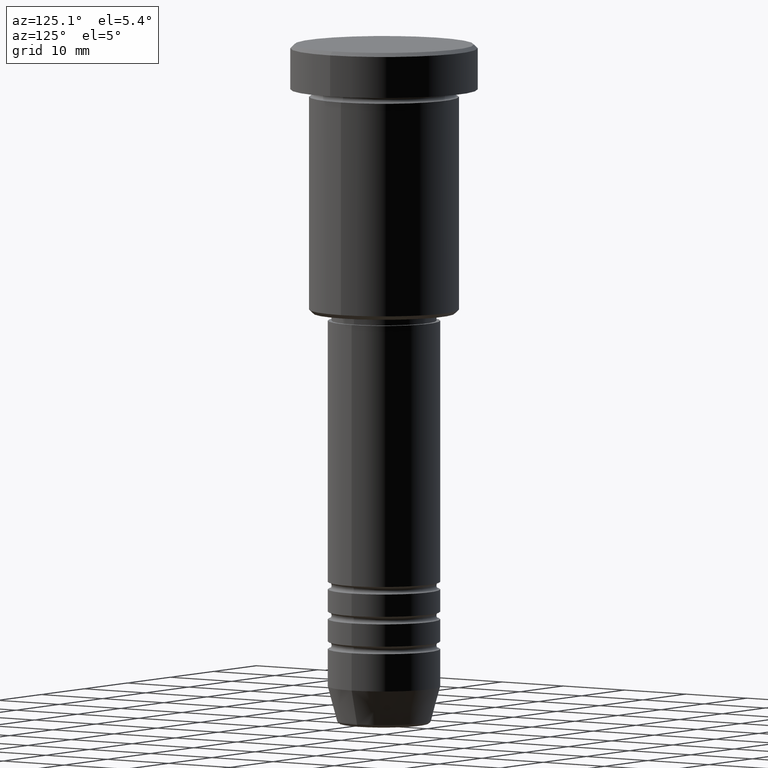
[diagram: clean part render]
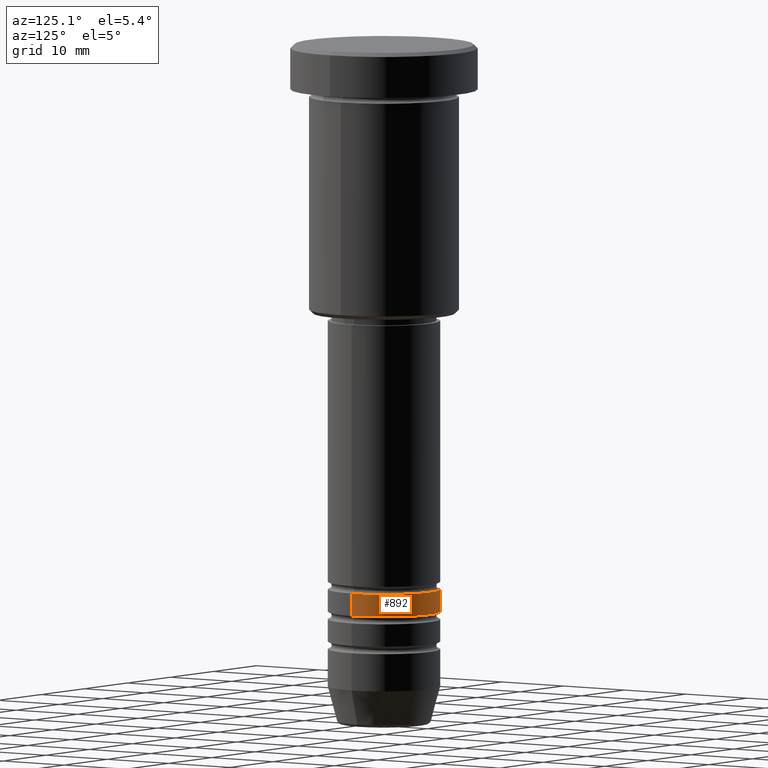
[diagram: same view with one face highlighted and labeled with its STEP entity id]
A machine part, auxiliary view. The second image highlights one B-rep face of the part: STEP entity #892.
In plain terms, the highlighted cylindrical surface (partial cylindrical patch) has radius 7.5 mm, axis along (-0, -0, 1).
Its self-contained STEP definition (entity closure, byte-faithful):
#13 = CARTESIAN_POINT ( 'NONE',  ( -7.500000000000000000, 9.184850993605147944E-16, -72.99999999999988631 ) ) ;
#35 = VERTEX_POINT ( 'NONE', #13 ) ;
#74 = ORIENTED_EDGE ( 'NONE', *, *, #857, .F. ) ;
#131 = ORIENTED_EDGE ( 'NONE', *, *, #720, .F. ) ;
#142 = CIRCLE ( 'NONE', #804, 7.500000000000002665 ) ;
#228 = DIRECTION ( 'NONE',  ( 1.000000000000000000, 0.000000000000000000, 0.000000000000000000 ) ) ;
#235 = AXIS2_PLACEMENT_3D ( 'NONE', #877, #790, #228 ) ;
#236 = CARTESIAN_POINT ( 'NONE',  ( 7.500000000000001776, 0.000000000000000000, 0.000000000000000000 ) ) ;
#250 = CARTESIAN_POINT ( 'NONE',  ( -7.500000000000003553, 9.184850993605151889E-16, -75.99999999999990052 ) ) ;
#254 = DIRECTION ( 'NONE',  ( 1.000000000000000000, 0.000000000000000000, 0.000000000000000000 ) ) ;
#270 = CARTESIAN_POINT ( 'NONE',  ( 0.000000000000000000, 0.000000000000000000, -75.99999999999990052 ) ) ;
#274 = VERTEX_POINT ( 'NONE', #250 ) ;
#341 = VECTOR ( 'NONE', #599, 1000.000000000000000 ) ;
#415 = ORIENTED_EDGE ( 'NONE', *, *, #581, .T. ) ;
#439 = LINE ( 'NONE', #236, #341 ) ;
#462 = EDGE_CURVE ( 'NONE', #566, #274, #142, .T. ) ;
#488 = VERTEX_POINT ( 'NONE', #1017 ) ;
#562 = VECTOR ( 'NONE', #974, 1000.000000000000000 ) ;
#566 = VERTEX_POINT ( 'NONE', #820 ) ;
#581 = EDGE_CURVE ( 'NONE', #274, #35, #1120, .T. ) ;
#596 = AXIS2_PLACEMENT_3D ( 'NONE', #1183, #708, #254 ) ;
#599 = DIRECTION ( 'NONE',  ( -0.000000000000000000, -0.000000000000000000, 1.000000000000000000 ) ) ;
#641 = DIRECTION ( 'NONE',  ( 1.000000000000000000, 0.000000000000000000, 0.000000000000000000 ) ) ;
#690 = CARTESIAN_POINT ( 'NONE',  ( -7.500000000000001776, 9.184850993605149917E-16, 0.000000000000000000 ) ) ;
#708 = DIRECTION ( 'NONE',  ( -0.000000000000000000, -0.000000000000000000, 1.000000000000000000 ) ) ;
#720 = EDGE_CURVE ( 'NONE', #488, #35, #823, .T. ) ;
#744 = EDGE_LOOP ( 'NONE', ( #995, #415, #131, #74 ) ) ;
#790 = DIRECTION ( 'NONE',  ( -0.000000000000000000, -0.000000000000000000, 1.000000000000000000 ) ) ;
#804 = AXIS2_PLACEMENT_3D ( 'NONE', #270, #926, #641 ) ;
#808 = CYLINDRICAL_SURFACE ( 'NONE', #596, 7.500000000000001776 ) ;
#818 = FACE_OUTER_BOUND ( 'NONE', #744, .T. ) ;
#820 = CARTESIAN_POINT ( 'NONE',  ( 7.500000000000002665, 0.000000000000000000, -75.99999999999990052 ) ) ;
#823 = CIRCLE ( 'NONE', #235, 7.500000000000000000 ) ;
#857 = EDGE_CURVE ( 'NONE', #566, #488, #439, .T. ) ;
#877 = CARTESIAN_POINT ( 'NONE',  ( 0.000000000000000000, 0.000000000000000000, -72.99999999999988631 ) ) ;
#892 = ADVANCED_FACE ( 'NONE', ( #818 ), #808, .T. ) ;
#926 = DIRECTION ( 'NONE',  ( -0.000000000000000000, -0.000000000000000000, 1.000000000000000000 ) ) ;
#974 = DIRECTION ( 'NONE',  ( -0.000000000000000000, -0.000000000000000000, 1.000000000000000000 ) ) ;
#995 = ORIENTED_EDGE ( 'NONE', *, *, #462, .T. ) ;
#1017 = CARTESIAN_POINT ( 'NONE',  ( 7.500000000000000000, 0.000000000000000000, -72.99999999999988631 ) ) ;
#1120 = LINE ( 'NONE', #690, #562 ) ;
#1183 = CARTESIAN_POINT ( 'NONE',  ( 0.000000000000000000, 0.000000000000000000, 0.000000000000000000 ) ) ;